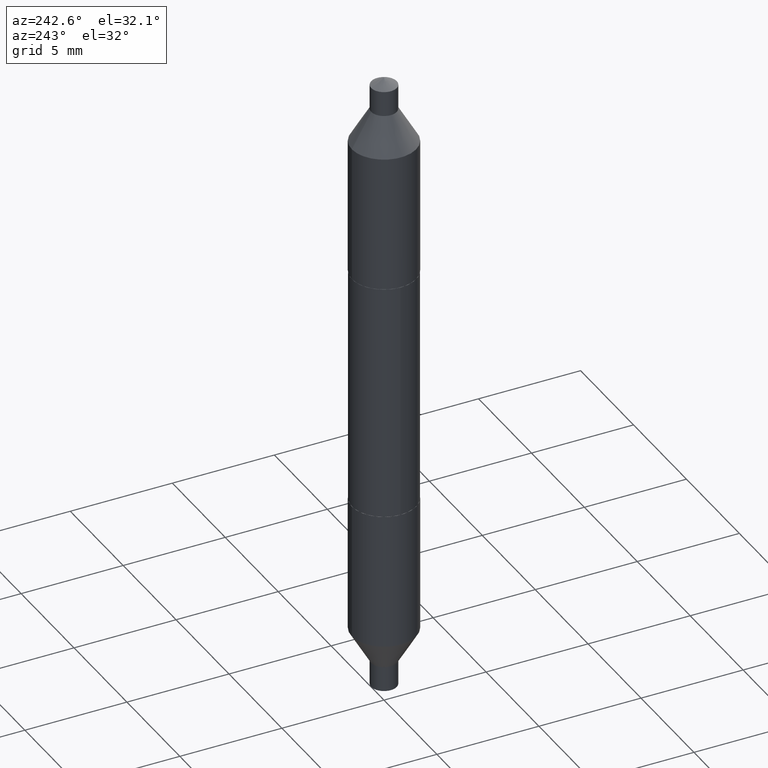
[diagram: clean part render]
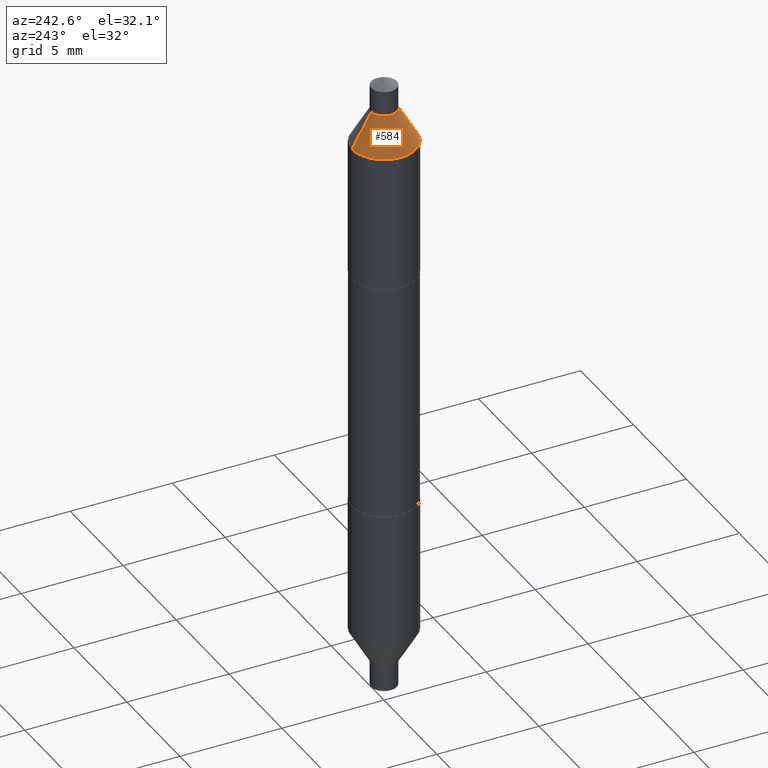
[diagram: same view with one face highlighted and labeled with its STEP entity id]
A machine part, auxiliary view. The second image highlights one B-rep face of the part: STEP entity #584.
In plain terms, the highlighted conical surface has half-angle 30 deg.
Its self-contained STEP definition (entity closure, byte-faithful):
#5 = LINE ( 'NONE', #470, #157 ) ;
#16 = DIRECTION ( 'NONE',  ( -2.416963263212490311E-29, 3.532302898814723965E-15, 1.000000000000000000 ) ) ;
#34 = EDGE_LOOP ( 'NONE', ( #132, #365, #611, #415 ) ) ;
#40 = CARTESIAN_POINT ( 'NONE',  ( 1.687682507451660463E-16, 0.02460000000000194670, 0.5569999999999999396 ) ) ;
#59 = AXIS2_PLACEMENT_3D ( 'NONE', #271, #596, #219 ) ;
#119 = CARTESIAN_POINT ( 'NONE',  ( -1.352804812493065762E-29, 1.958103755846338219E-15, 0.5569999999999999396 ) ) ;
#132 = ORIENTED_EDGE ( 'NONE', *, *, #602, .F. ) ;
#142 = VERTEX_POINT ( 'NONE', #283 ) ;
#145 = AXIS2_PLACEMENT_3D ( 'NONE', #272, #16, #589 ) ;
#149 = EDGE_CURVE ( 'NONE', #142, #619, #443, .T. ) ;
#157 = VECTOR ( 'NONE', #171, 39.37007874015748143 ) ;
#171 = DIRECTION ( 'NONE',  ( -3.491481338843073402E-15, -0.4999999999999974465, -0.8660254037844400399 ) ) ;
#204 = CONICAL_SURFACE ( 'NONE', #59, 0.02459999999999998646, 0.5235987755982924874 ) ;
#207 = LINE ( 'NONE', #40, #304 ) ;
#219 = DIRECTION ( 'NONE',  ( -6.982962677686265922E-15, -1.000000000000000000, 2.776268286244171659E-15 ) ) ;
#271 = CARTESIAN_POINT ( 'NONE',  ( -1.352804812493065762E-29, 1.958103755846338219E-15, 0.5569999999999999396 ) ) ;
#272 = CARTESIAN_POINT ( 'NONE',  ( -1.196237073863572951E-29, 1.729285765337559218E-15, 0.4922212997969229731 ) ) ;
#273 = FACE_OUTER_BOUND ( 'NONE', #34, .T. ) ;
#283 = CARTESIAN_POINT ( 'NONE',  ( 4.253508758618293946E-16, 0.06200000000000174122, 0.4922212997969227510 ) ) ;
#288 = VERTEX_POINT ( 'NONE', #298 ) ;
#298 = CARTESIAN_POINT ( 'NONE',  ( 1.687682507451654546E-16, 0.02460000000000194670, 0.5569999999999999396 ) ) ;
#304 = VECTOR ( 'NONE', #364, 39.37007874015748854 ) ;
#361 = AXIS2_PLACEMENT_3D ( 'NONE', #119, #429, #434 ) ;
#364 = DIRECTION ( 'NONE',  ( 3.430248998885747243E-15, 0.4999999999999913403, -0.8660254037844434816 ) ) ;
#365 = ORIENTED_EDGE ( 'NONE', *, *, #374, .T. ) ;
#374 = EDGE_CURVE ( 'NONE', #288, #142, #207, .T. ) ;
#415 = ORIENTED_EDGE ( 'NONE', *, *, #606, .F. ) ;
#429 = DIRECTION ( 'NONE',  ( -2.416963263212490311E-29, 3.532302898814723965E-15, 1.000000000000000000 ) ) ;
#434 = DIRECTION ( 'NONE',  ( -6.982962677686265922E-15, -1.000000000000000000, 2.776268286244171659E-15 ) ) ;
#443 = CIRCLE ( 'NONE', #145, 0.06200000000000000649 ) ;
#470 = CARTESIAN_POINT ( 'NONE',  ( -1.717808818710955741E-16, -0.02459999999999802969, 0.5570000000000000506 ) ) ;
#483 = CARTESIAN_POINT ( 'NONE',  ( -4.329436860165604459E-16, -0.06199999999999827177, 0.4922212997969231396 ) ) ;
#584 = ADVANCED_FACE ( 'NONE', ( #273 ), #204, .T. ) ;
#589 = DIRECTION ( 'NONE',  ( -6.982962677686265922E-15, -1.000000000000000000, 3.304654831045479413E-15 ) ) ;
#592 = CARTESIAN_POINT ( 'NONE',  ( -1.717808818710955741E-16, -0.02459999999999802969, 0.5570000000000000506 ) ) ;
#596 = DIRECTION ( 'NONE',  ( 2.416963263212490311E-29, -3.532302898814723965E-15, -1.000000000000000000 ) ) ;
#602 = EDGE_CURVE ( 'NONE', #288, #603, #682, .T. ) ;
#603 = VERTEX_POINT ( 'NONE', #592 ) ;
#606 = EDGE_CURVE ( 'NONE', #603, #619, #5, .T. ) ;
#611 = ORIENTED_EDGE ( 'NONE', *, *, #149, .T. ) ;
#619 = VERTEX_POINT ( 'NONE', #483 ) ;
#682 = CIRCLE ( 'NONE', #361, 0.02459999999999998646 ) ;